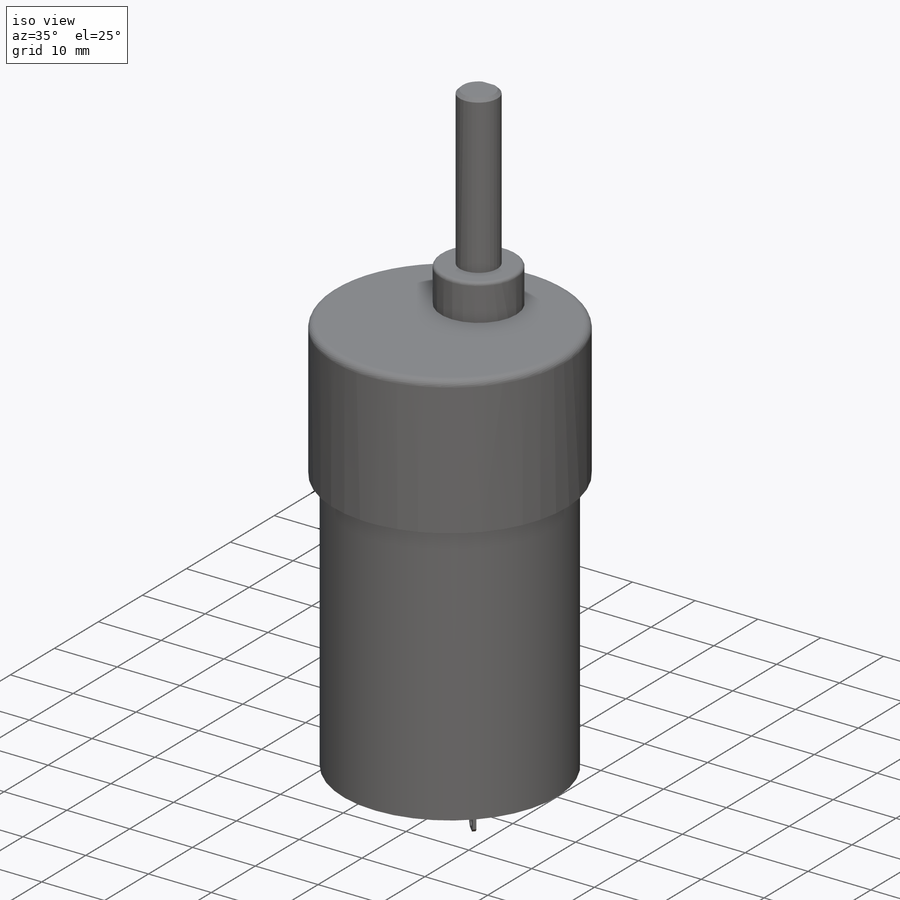
[diagram: iso view]
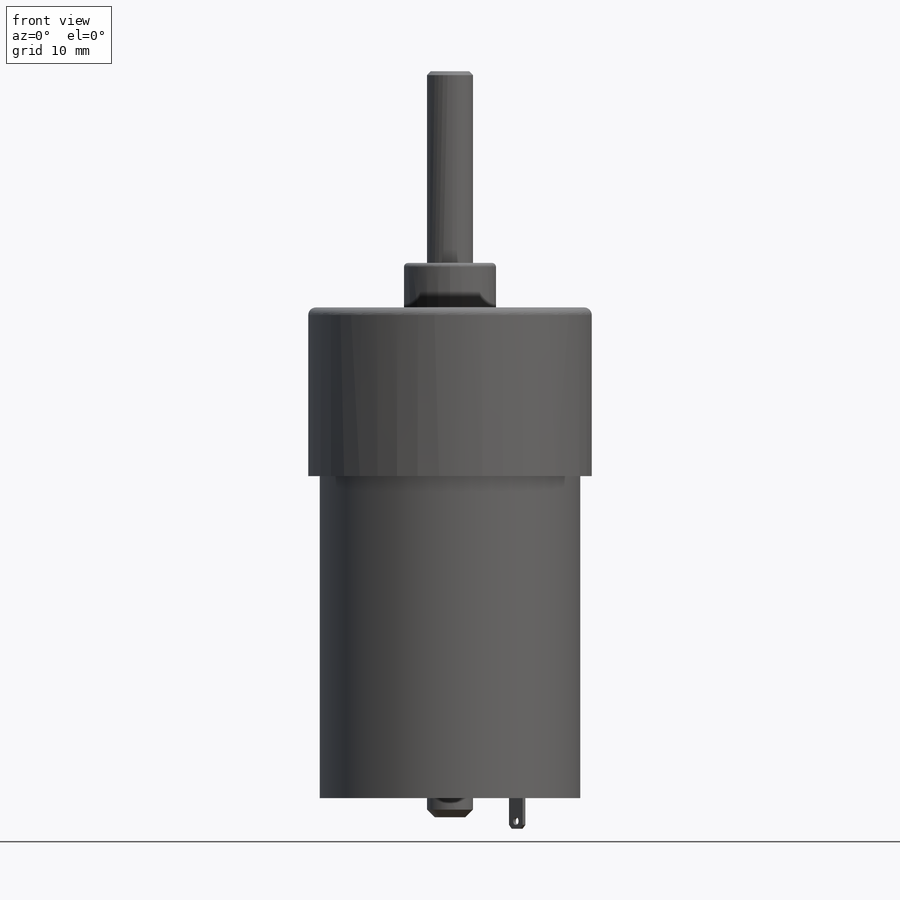
[diagram: front view]
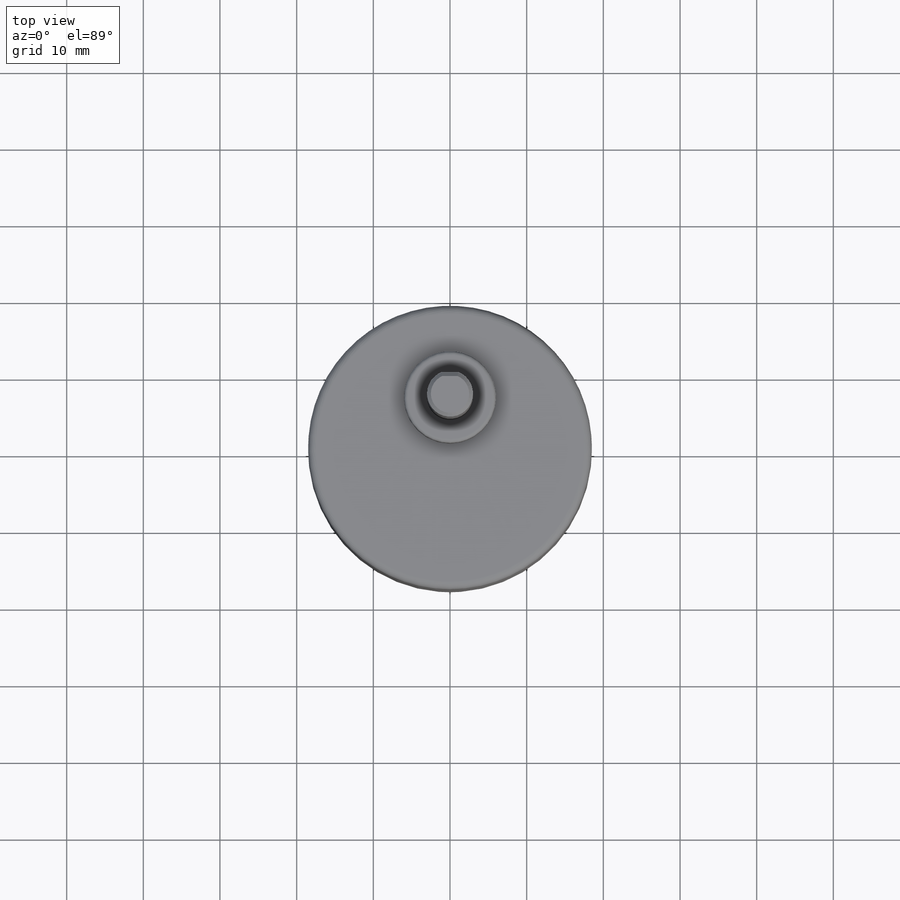
[diagram: top view]
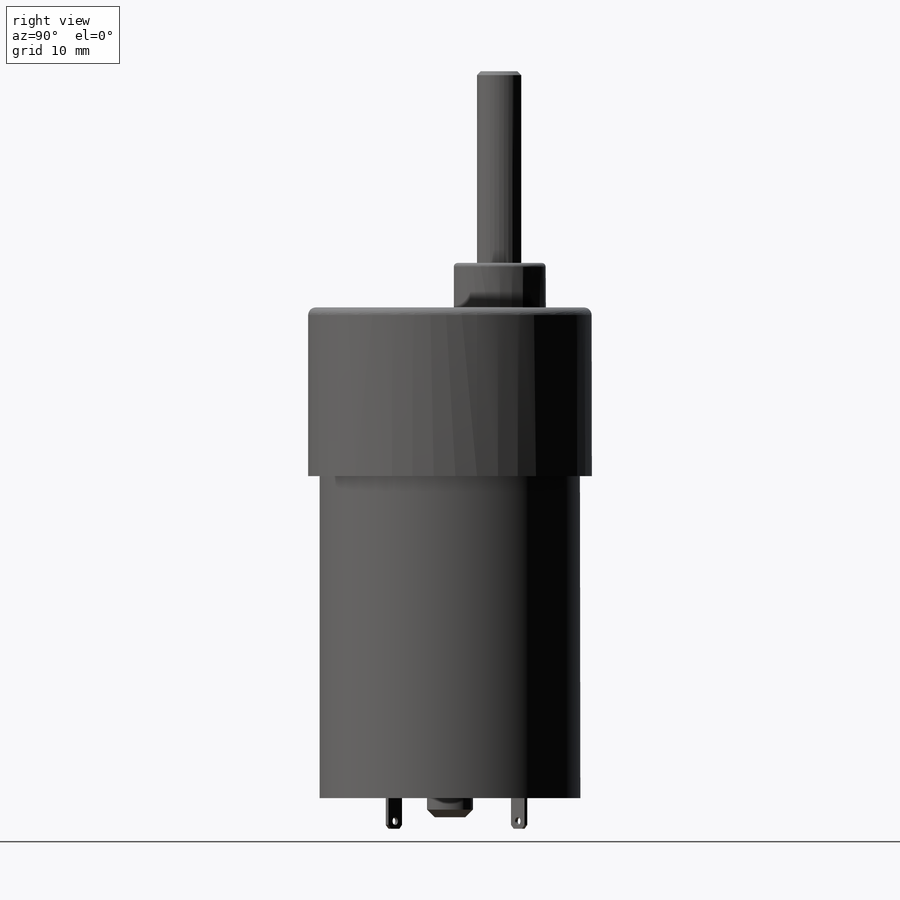
[diagram: right view]
SOLIDWORKS PART (.sldprt)
format: sldprt  version: not decoded by parser v0  size: 317,952 bytes
history: native  units: mm
features: sketch x10, extrude x7, chamfer x4, cut_extrude x3, fillet x2, material x1 (+13 scaffold rows collapsed)
feature tree (40):
  scaffold x13  (default folders/planes/origin — collapsed)
  material  "Alloy Steel"
  sketch  "Sketch1"  dims[D1=37.0mm]
  extrude  "Extrude1"  Depth=22mm
  sketch  "Sketch2"  dims[D1=12.0mm D2=6.5mm]
  extrude  "Extrude2"  Depth=5.8mm
  sketch  "Sketch3"  dims[D1=6.0mm]
  extrude  "Extrude3"  Depth=25mm
  sketch  "Sketch4"  dims[D1=34.0mm]
  extrude  "Extrude4"  Depth=42mm
  sketch  "Sketch5"  dims[D1=33.0mm]
  cut_extrude  "Cut-Extrude1"  Depth=1mm
  sketch  "Sketch6"  dims[D1=10.0mm]
  extrude  "Extrude5"  Depth=1mm
  sketch  "Sketch7"  dims[D1=6.0mm]
  extrude  "Extrude6"  Depth=2.5mm
  sketch  "Sketch8"  dims[D1=2.5mm D2=0.5mm D3=2.5mm D4=0.5mm]
  extrude  "Extrude7"  Depth=5mm
  sketch  "Sketch9"  dims[D1=1.0mm D2=1.0mm]
  cut_extrude  "Cut-Extrude3"  [1 undecoded]
  sketch  "Sketch10"  dims[D1=1.0mm D2=1.0mm]
  cut_extrude  "Cut-Extrude4"  [1 undecoded]
  chamfer  "Chamfer1"  Distance=1mm Angle=45deg
  chamfer  "Chamfer2"  Distance=0.5mm Angle=45deg
  chamfer  "Chamfer3"  Distance=0.5mm Angle=45deg
  fillet  "Fillet2"  Radius=1mm
  fillet  "Fillet3"  Radius=0.5mm
  chamfer  "Chamfer4"  Distance=0.5mm Angle=45deg
decode coverage: 24 of 26 modeling features carry decoded parameters
note: 2 parameter values undecoded
note: suppression state not decoded; provenance and decode notes live in map.json
